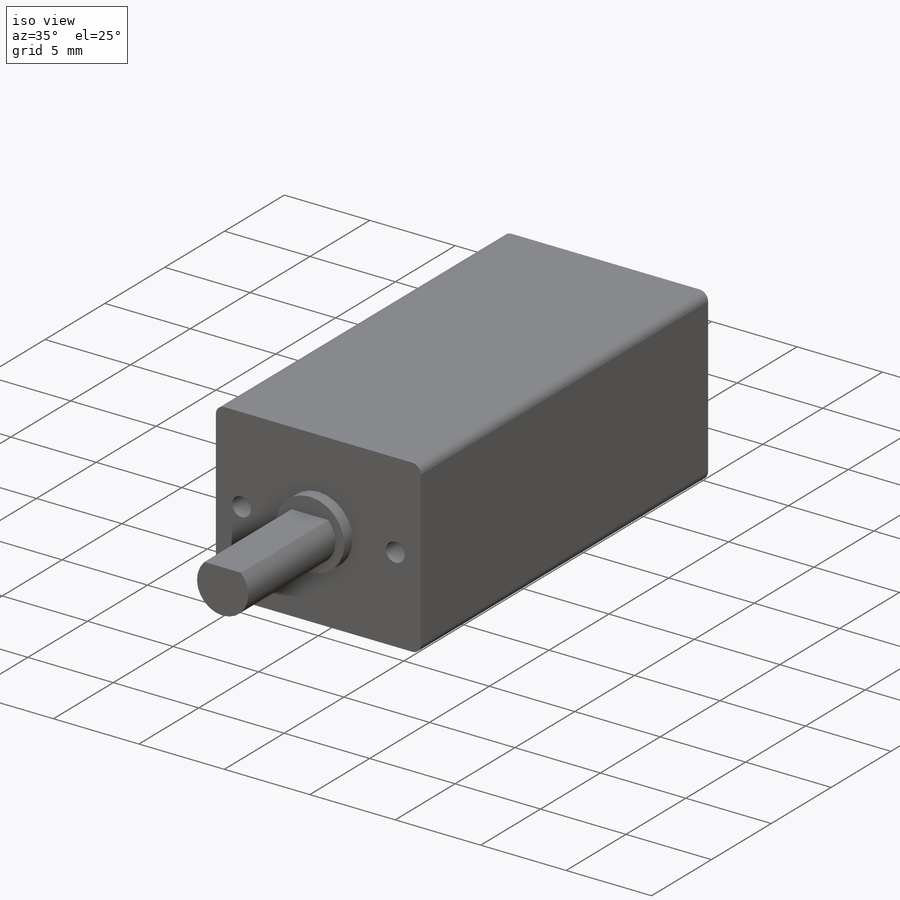
[diagram: iso view]
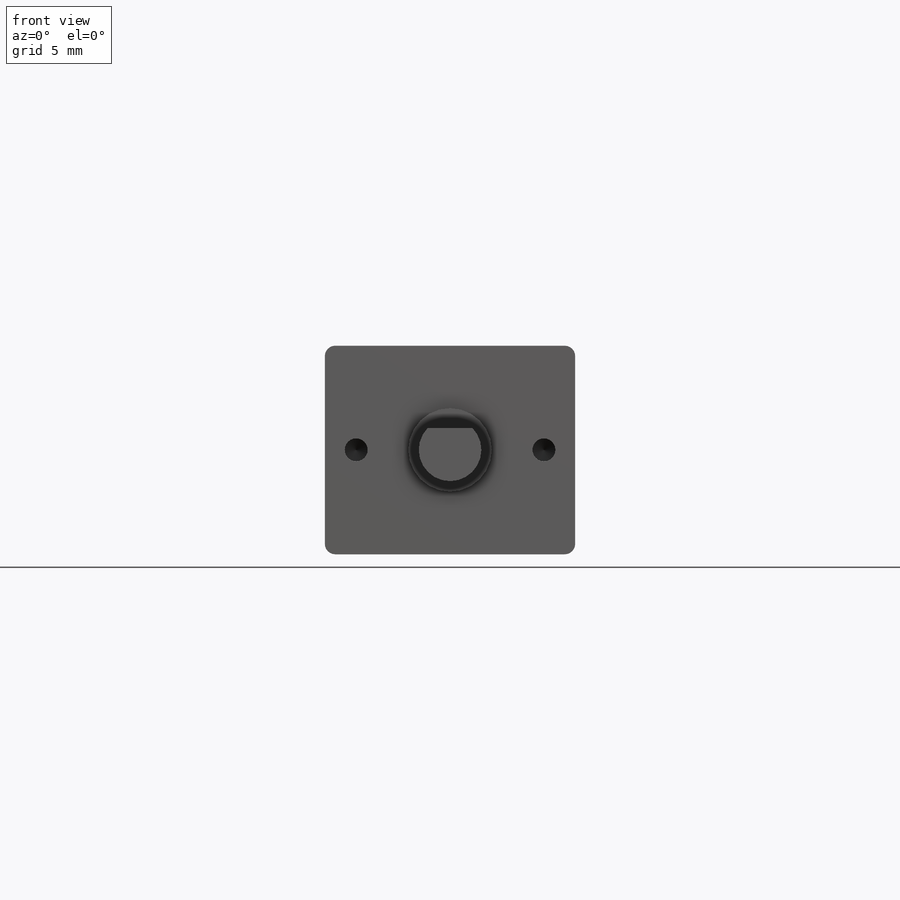
[diagram: front view]
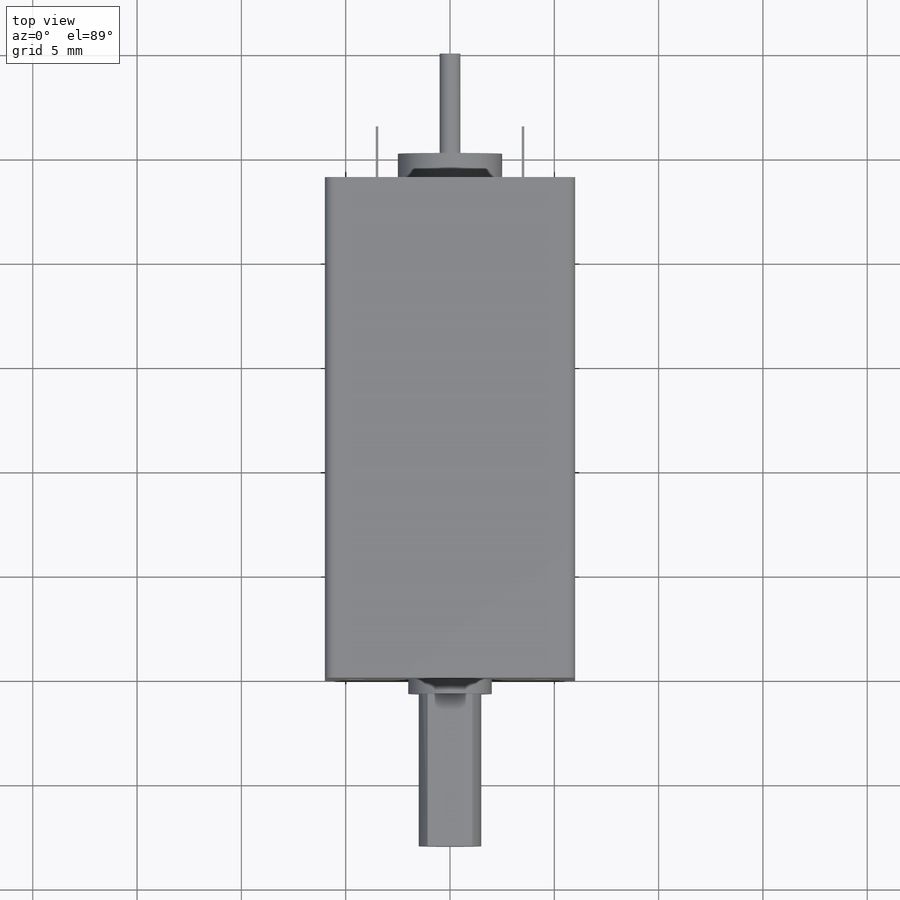
[diagram: top view]
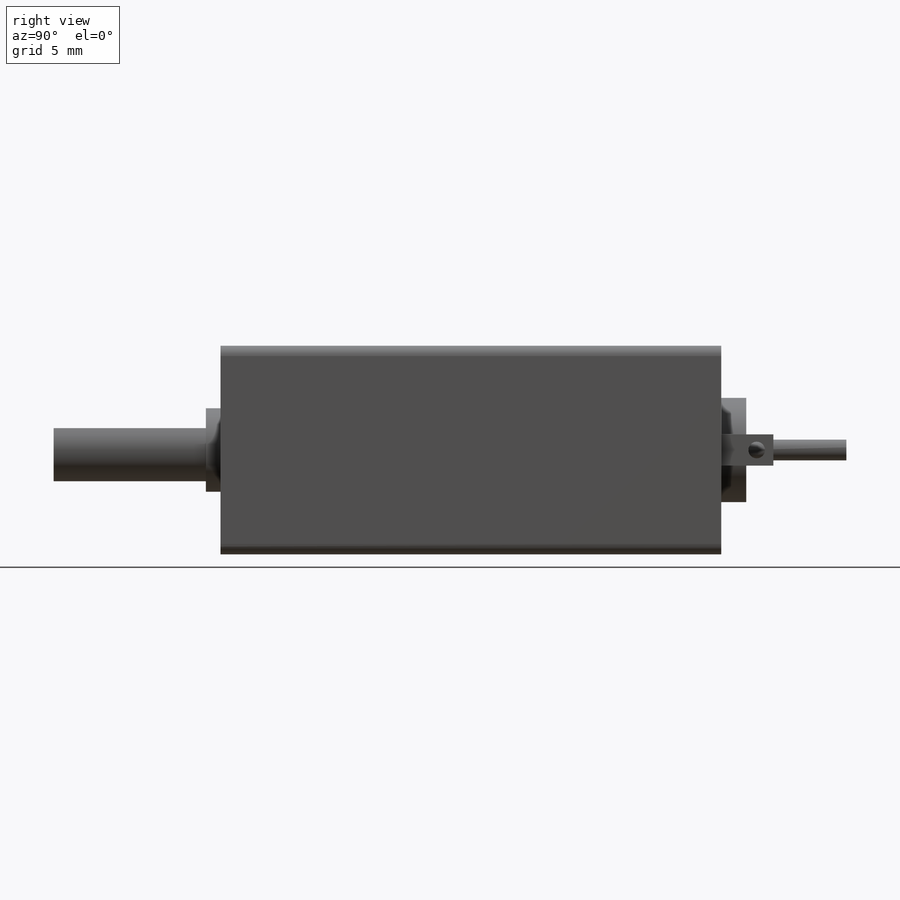
[diagram: right view]
SOLIDWORKS PART (.sldprt)
format: sldprt  version: not decoded by parser v0  size: 653,824 bytes
history: native  units: mm
features: sketch x13, extrude x6, plane x3, hole x2, cut_extrude x2, material x1, fillet x1 (+10 scaffold rows collapsed)
feature tree (38):
  scaffold x10  (default folders/planes/origin — collapsed)
  material  "Material <nicht angegeben>"
  plane  "Ebene vorne"
  plane  "Ebene oben"
  plane  "Ebene rechts"
  sketch  "top"  dims[c1.D1=~28.786667mm c1.D2=~36.504831mm c2.D1=10.0mm c2.D2=12.0mm c2.D3=~15.620499mm]
  extrude  "Precision Microdrives Model 212-109"  Depth=24mm
  sketch  "top ring"  dims[D1=4.0mm]
  extrude  "top-ring"  Depth=0.7mm
  hole  "M1-1"  Diameter=1.1mm Depth=10mm
  sketch  "Skizze6"  dims[D1=4.5mm D2=~17.62416mm]
  sketch  "Skizze5"  dims[hole-wizard template sketch: 46 standard entries collapsed; hole parameters kept: c15.Bohrerdurchmesser=1.1mm c15.Bohrungstiefe=10.0mm c15.D3=~14.816244mm c15.Spitzenwinkel=117.0deg]
  hole  "M1-2"  Diameter=1.1mm Depth=10mm
  sketch  "Skizze8"  dims[D1=4.5mm D2=~24.995106mm]
  sketch  "Skizze7"  dims[hole-wizard template sketch: 46 standard entries collapsed; hole parameters kept: c15.Bohrerdurchmesser=1.1mm c15.Bohrungstiefe=10.0mm c15.D3=~14.816244mm c15.Spitzenwinkel=117.0deg]
  sketch  "Skizze11"  dims[c1.D1=~1.51619mm c1.D2=~1.647685mm c2.D1=2.55mm c2.D2=~2.142429mm]
  extrude  "D-Shaft"  Depth=8mm
  fillet  "Verrundung1"  Radius=0.5mm
  sketch  "Skizze12"  dims[D1=5.0mm]
  extrude  "bottom"  Depth=1.2mm
  sketch  "Skizze13"  dims[D1=1.0mm]
  extrude  "bolt"  Depth=6mm
  sketch  "Skizze14"  dims[c1.D1=~2.113337mm c1.D2=~0.36555mm c2.D1=~2.747418mm c2.D2=~0.553251mm c3.D1=1.5mm c3.D2=0.12mm c3.D3=1.5mm c3.D4=0.12mm c3.D5=3.5mm c3.D6=3.5mm]
  extrude  "flaps"  Depth=2.5mm
  sketch  "Skizze15"  dims[c1.D1=~0.666341mm c1.D2=0.8mm c2.D1=0.8mm]
  cut_extrude  "flap1-cut"  [1 undecoded]
  sketch  "Skizze16"  dims[c1.D1=~0.636264mm c1.D2=0.8mm c2.D1=0.8mm]
  cut_extrude  "flap2-cut"  [1 undecoded]
  sketch  "Skizze17"  dims[D1=12.0mm]
decode coverage: 22 of 24 modeling features carry decoded parameters
note: ~ marks probable driven/reference dimensions
note: 2 parameter values undecoded
note: suppression state not decoded; provenance and decode notes live in map.json
